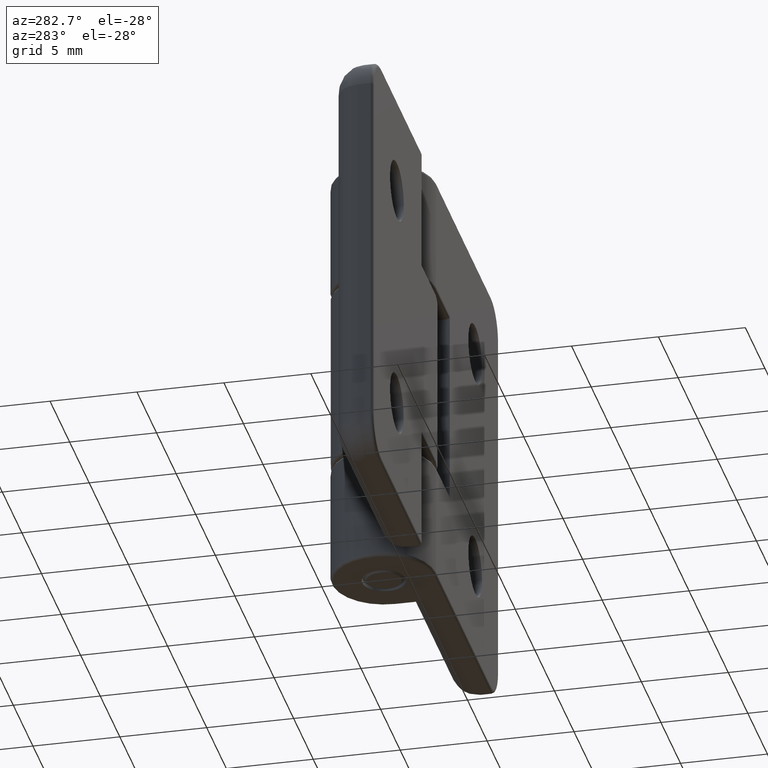
[diagram: clean part render]
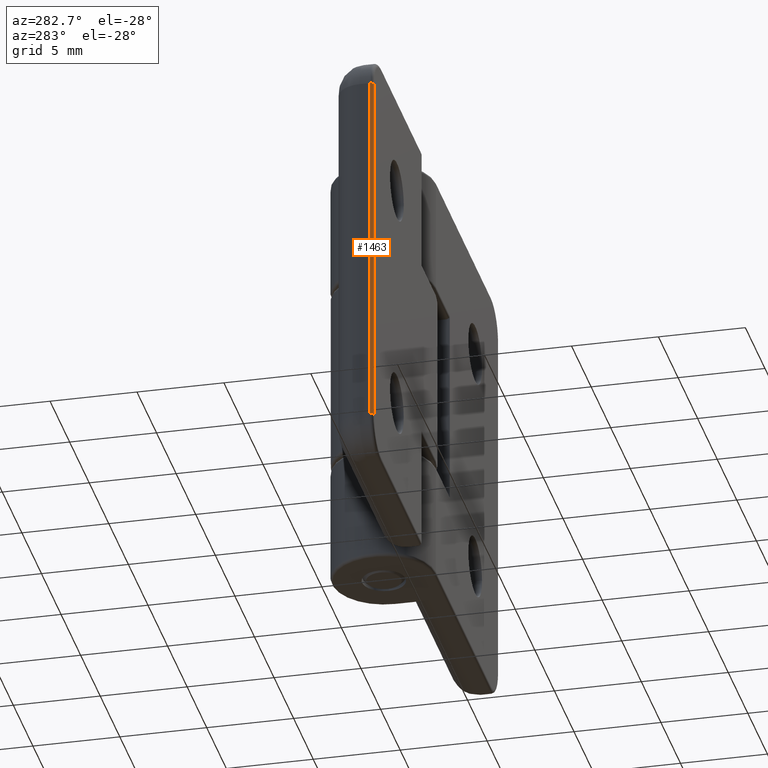
[diagram: same view with one face highlighted and labeled with its STEP entity id]
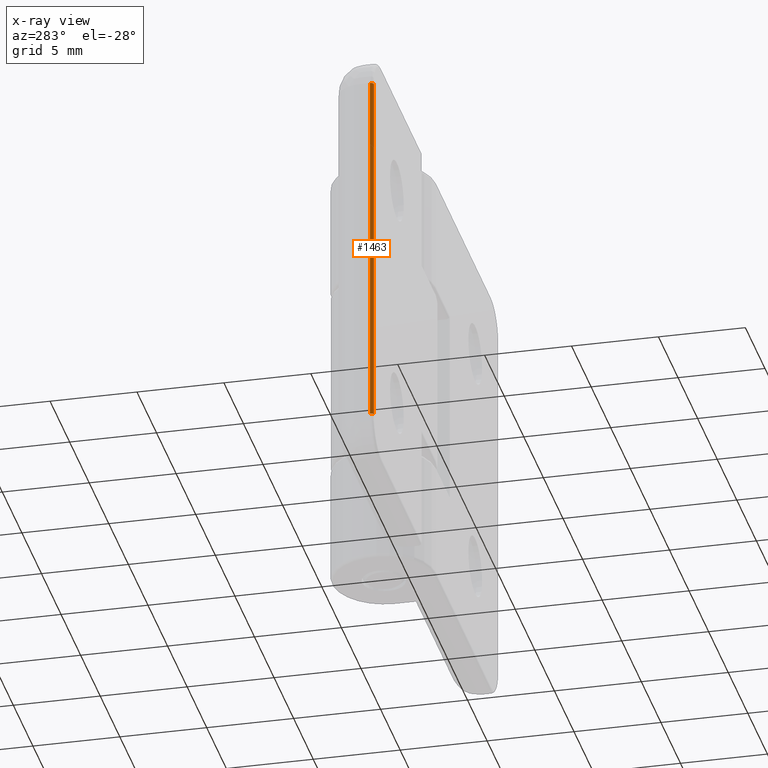
[diagram: x-ray of the same camera — body ghosted, the highlighted face saturated]
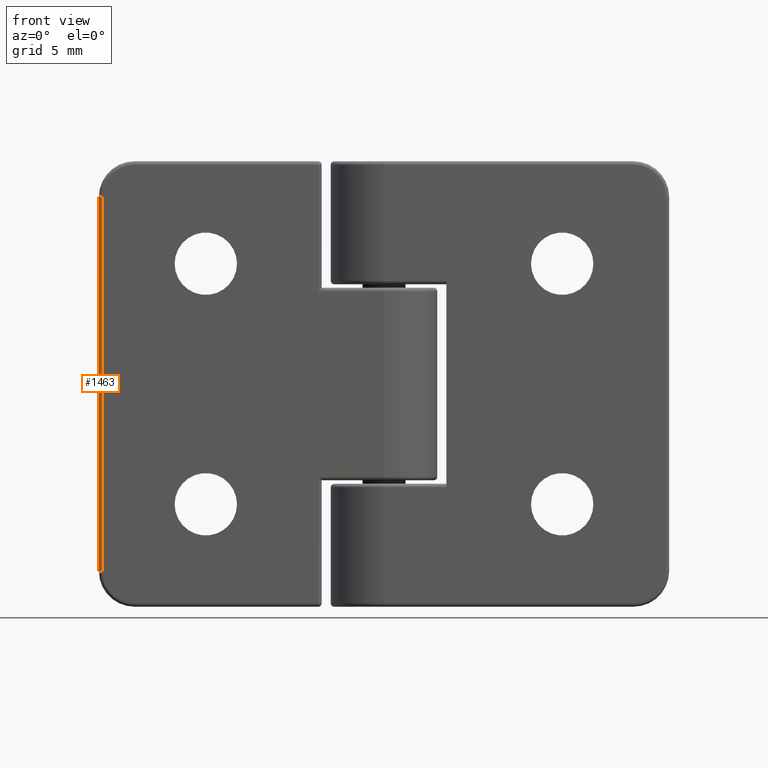
[diagram: same view with one face highlighted and labeled with its STEP entity id]
A machine part, auxiliary view. The second image highlights one B-rep face of the part: STEP entity #1463.
The next image is the same camera in x-ray: the body ghosted, the highlighted face saturated — about 0% of this face is hidden behind the body in this view.
A second angle (front view) of the same face is appended — the face is thin or edge-on in the first view.
In plain terms, the highlighted cylindrical surface (edge-blend (fillet) strip) has radius 0.2 mm, axis along (0, 0, 1).
Its self-contained STEP definition (entity closure, byte-faithful):
#179=FACE_OUTER_BOUND('',#293,.T.);
#293=EDGE_LOOP('',(#1182,#1183,#1184,#1185));
#407=LINE('',#2521,#495);
#408=LINE('',#2522,#496);
#495=VECTOR('',#2021,21.);
#496=VECTOR('',#2022,21.);
#591=CIRCLE('',#1630,0.199999999999998);
#594=CIRCLE('',#1634,0.2);
#712=VERTEX_POINT('',#2512);
#713=VERTEX_POINT('',#2513);
#714=VERTEX_POINT('',#2518);
#715=VERTEX_POINT('',#2519);
#877=EDGE_CURVE('',#712,#713,#591,.T.);
#880=EDGE_CURVE('',#714,#715,#594,.T.);
#881=EDGE_CURVE('',#715,#713,#407,.T.);
#882=EDGE_CURVE('',#712,#714,#408,.T.);
#1182=ORIENTED_EDGE('',*,*,#880,.T.);
#1183=ORIENTED_EDGE('',*,*,#881,.T.);
#1184=ORIENTED_EDGE('',*,*,#877,.F.);
#1185=ORIENTED_EDGE('',*,*,#882,.T.);
#1387=CYLINDRICAL_SURFACE('',#1633,0.2);
#1463=ADVANCED_FACE('',(#179),#1387,.T.);
#1630=AXIS2_PLACEMENT_3D('',#2514,#2011,#2012);
#1633=AXIS2_PLACEMENT_3D('',#2517,#2017,#2018);
#1634=AXIS2_PLACEMENT_3D('',#2520,#2019,#2020);
#2011=DIRECTION('center_axis',(0.,0.,1.));
#2012=DIRECTION('ref_axis',(0.,-1.,0.));
#2017=DIRECTION('center_axis',(0.,0.,-1.));
#2018=DIRECTION('ref_axis',(0.707106781186548,-0.707106781186548,0.));
#2019=DIRECTION('center_axis',(0.,0.,1.));
#2020=DIRECTION('ref_axis',(0.,-1.,0.));
#2021=DIRECTION('',(0.,0.,1.));
#2022=DIRECTION('',(0.,0.,-1.));
#2512=CARTESIAN_POINT('',(15.8,-3.,10.5));
#2513=CARTESIAN_POINT('',(16.,-2.8,10.5));
#2514=CARTESIAN_POINT('Origin',(15.8,-2.8,10.5));
#2517=CARTESIAN_POINT('Origin',(15.8,-2.8,0.));
#2518=CARTESIAN_POINT('',(15.8,-3.,-10.5));
#2519=CARTESIAN_POINT('',(16.,-2.8,-10.5));
#2520=CARTESIAN_POINT('Origin',(15.8,-2.8,-10.5));
#2521=CARTESIAN_POINT('',(16.,-2.8,0.));
#2522=CARTESIAN_POINT('',(15.8,-3.,0.));